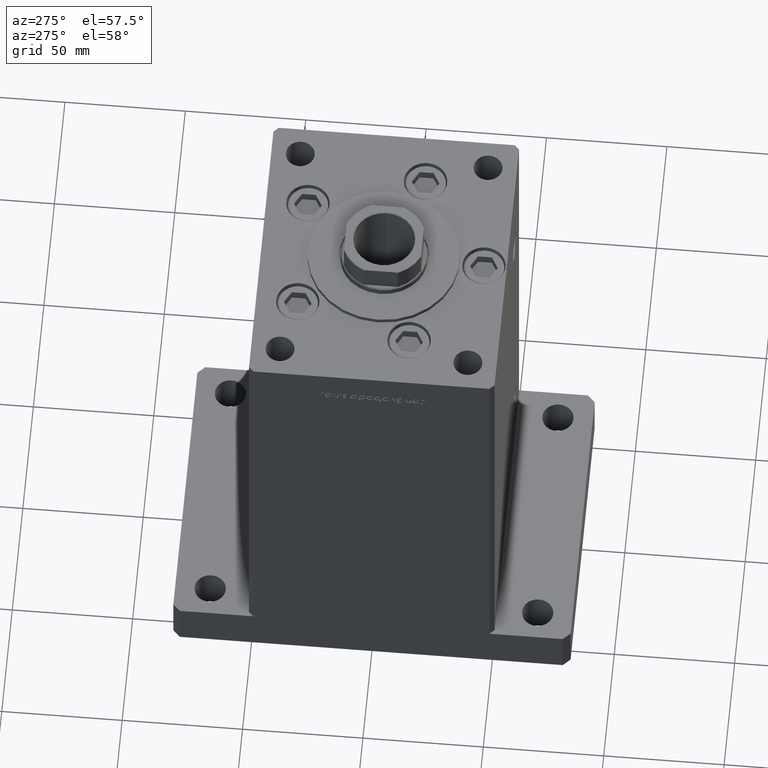
[diagram: clean part render]
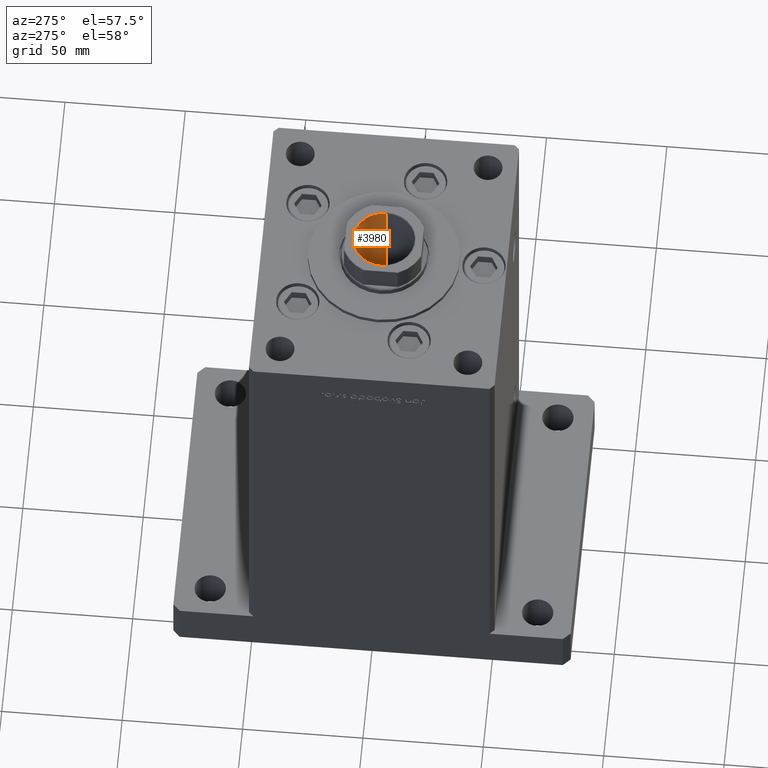
[diagram: same view with one face highlighted and labeled with its STEP entity id]
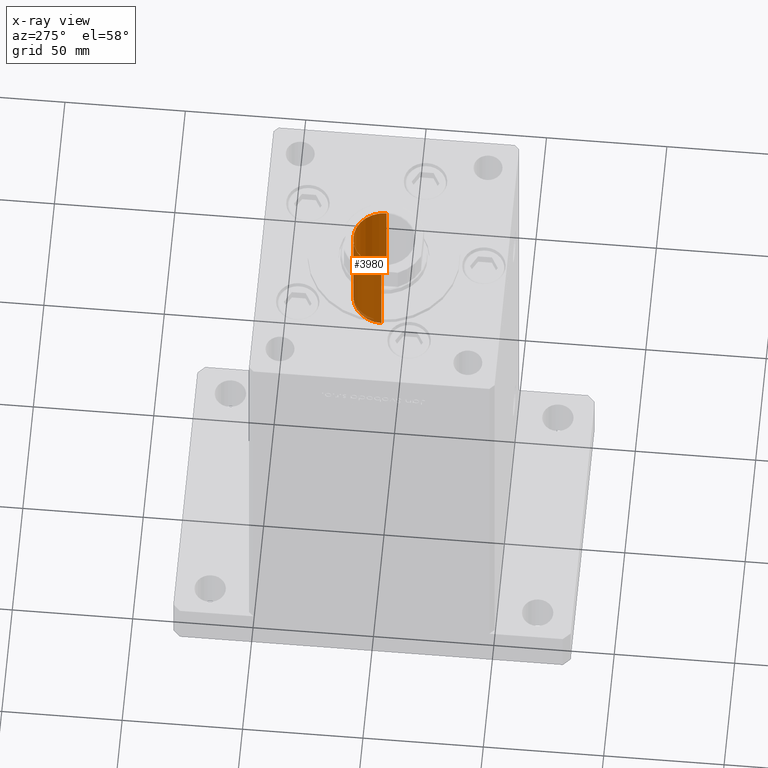
[diagram: x-ray of the same camera — body ghosted, the highlighted face saturated]
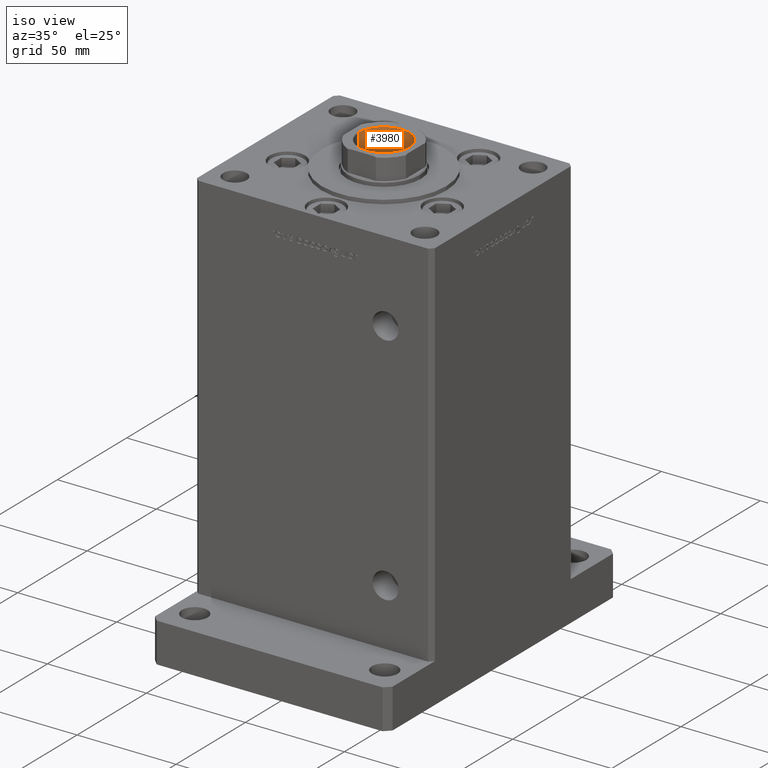
[diagram: same view with one face highlighted and labeled with its STEP entity id]
A machine part, auxiliary view. The second image highlights one B-rep face of the part: STEP entity #3980.
The next image is the same camera in x-ray: the body ghosted, the highlighted face saturated — about 3% of this face is hidden behind the body in this view.
A second angle (iso view) of the same face is appended — the face is thin or edge-on in the first view.
In plain terms, the highlighted cylindrical surface (edge-blend (fillet) strip) has radius 12.75 mm, axis along (0, 0, 1).
Its self-contained STEP definition (entity closure, byte-faithful):
#686 = DIRECTION ( 'NONE',  ( -0.000000000000000000, -0.000000000000000000, 1.000000000000000000 ) ) ;
#803 = VECTOR ( 'NONE', #686, 1000.000000000000000 ) ;
#2741 = EDGE_CURVE ( 'NONE', #3177, #21744, #16968, .T. ) ;
#3083 = AXIS2_PLACEMENT_3D ( 'NONE', #6293, #38811, #34756 ) ;
#3177 = VERTEX_POINT ( 'NONE', #26589 ) ;
#3241 = EDGE_CURVE ( 'NONE', #4094, #48697, #13376, .T. ) ;
#3701 = DIRECTION ( 'NONE',  ( 1.000000000000000000, 0.000000000000000000, 0.000000000000000000 ) ) ;
#3980 = ADVANCED_FACE ( 'NONE', ( #27801 ), #52519, .F. ) ;
#4094 = VERTEX_POINT ( 'NONE', #26142 ) ;
#4570 = DIRECTION ( 'NONE',  ( 1.000000000000000000, 0.000000000000000000, 0.000000000000000000 ) ) ;
#6293 = CARTESIAN_POINT ( 'NONE',  ( 0.000000000000000000, 0.000000000000000000, 124.2500000000000142 ) ) ;
#6666 = ORIENTED_EDGE ( 'NONE', *, *, #53622, .F. ) ;
#9305 = CARTESIAN_POINT ( 'NONE',  ( 12.74999999999999467, 0.000000000000000000, 169.2500000000000000 ) ) ;
#9367 = ORIENTED_EDGE ( 'NONE', *, *, #3241, .T. ) ;
#13376 = LINE ( 'NONE', #9305, #15519 ) ;
#14344 = CIRCLE ( 'NONE', #3083, 12.74999999999999112 ) ;
#15227 = ORIENTED_EDGE ( 'NONE', *, *, #45412, .T. ) ;
#15519 = VECTOR ( 'NONE', #18216, 1000.000000000000000 ) ;
#16968 = LINE ( 'NONE', #36008, #803 ) ;
#18216 = DIRECTION ( 'NONE',  ( -0.000000000000000000, -0.000000000000000000, 1.000000000000000000 ) ) ;
#20236 = CARTESIAN_POINT ( 'NONE',  ( 0.000000000000000000, 0.000000000000000000, 169.2500000000000000 ) ) ;
#21744 = VERTEX_POINT ( 'NONE', #29309 ) ;
#26142 = CARTESIAN_POINT ( 'NONE',  ( 12.74999999999999112, 0.000000000000000000, 124.2500000000000142 ) ) ;
#26589 = CARTESIAN_POINT ( 'NONE',  ( -12.74999999999999112, 1.561424668912874125E-15, 124.2500000000000142 ) ) ;
#27801 = FACE_OUTER_BOUND ( 'NONE', #52600, .T. ) ;
#29309 = CARTESIAN_POINT ( 'NONE',  ( -12.74999999999999467, 1.561424668912874519E-15, 168.9499999999999602 ) ) ;
#29368 = CARTESIAN_POINT ( 'NONE',  ( 12.74999999999999467, 0.000000000000000000, 168.9499999999999602 ) ) ;
#32702 = ORIENTED_EDGE ( 'NONE', *, *, #2741, .F. ) ;
#32712 = AXIS2_PLACEMENT_3D ( 'NONE', #20236, #45463, #3701 ) ;
#34756 = DIRECTION ( 'NONE',  ( 1.000000000000000000, 0.000000000000000000, 0.000000000000000000 ) ) ;
#36008 = CARTESIAN_POINT ( 'NONE',  ( -12.74999999999999467, 1.561424668912874519E-15, 169.2500000000000000 ) ) ;
#38152 = CARTESIAN_POINT ( 'NONE',  ( 0.000000000000000000, 0.000000000000000000, 168.9499999999999602 ) ) ;
#38811 = DIRECTION ( 'NONE',  ( -0.000000000000000000, -0.000000000000000000, 1.000000000000000000 ) ) ;
#40069 = AXIS2_PLACEMENT_3D ( 'NONE', #38152, #41700, #4570 ) ;
#41700 = DIRECTION ( 'NONE',  ( 0.000000000000000000, 0.000000000000000000, 1.000000000000000000 ) ) ;
#45412 = EDGE_CURVE ( 'NONE', #48697, #21744, #53104, .T. ) ;
#45463 = DIRECTION ( 'NONE',  ( -0.000000000000000000, -0.000000000000000000, 1.000000000000000000 ) ) ;
#48697 = VERTEX_POINT ( 'NONE', #29368 ) ;
#52519 = CYLINDRICAL_SURFACE ( 'NONE', #32712, 12.74999999999999467 ) ;
#52600 = EDGE_LOOP ( 'NONE', ( #32702, #6666, #9367, #15227 ) ) ;
#53104 = CIRCLE ( 'NONE', #40069, 12.74999999999999467 ) ;
#53622 = EDGE_CURVE ( 'NONE', #4094, #3177, #14344, .T. ) ;